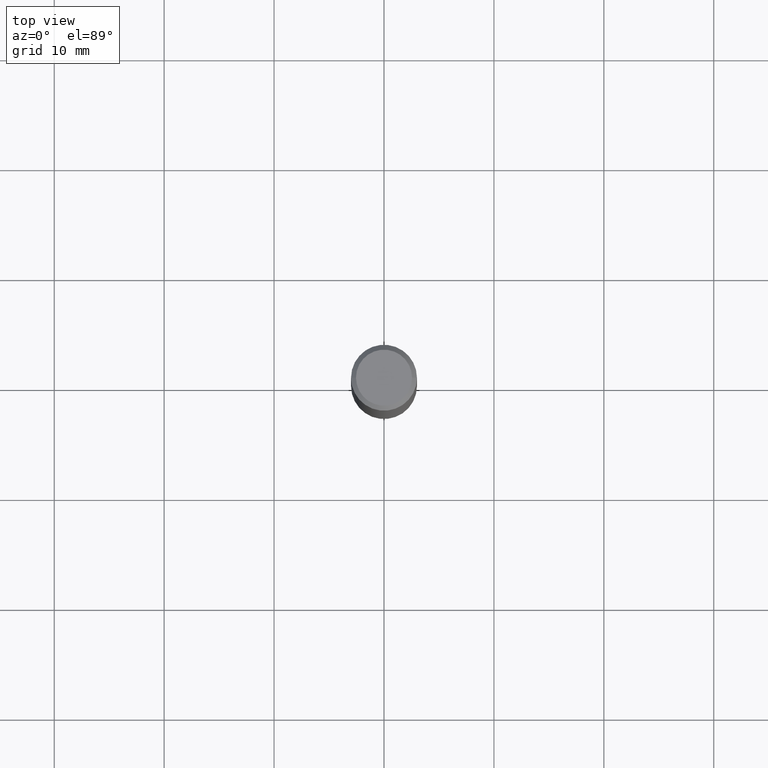
[diagram: clean part render]
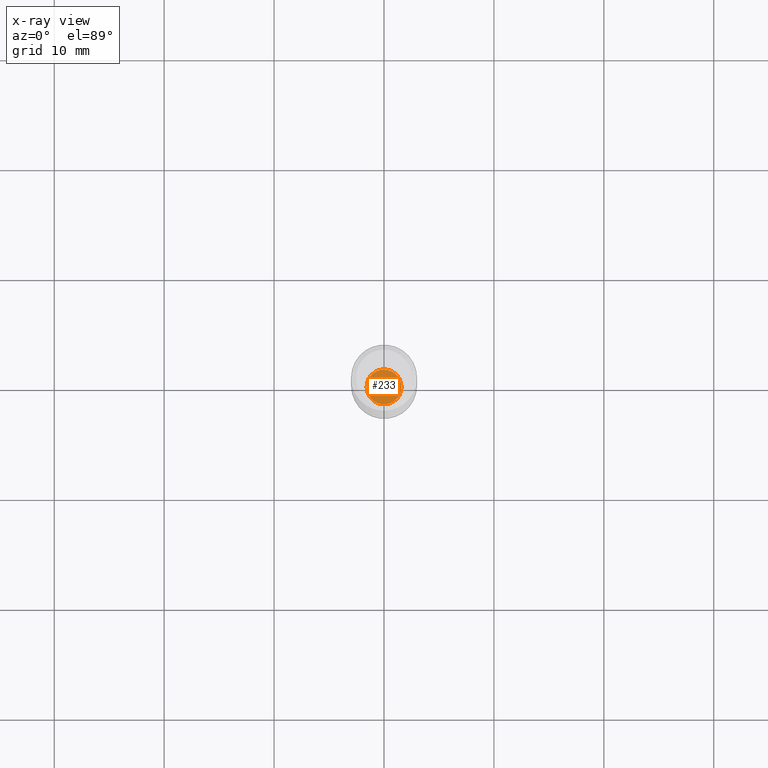
[diagram: x-ray — body ghosted, one internal face saturated and labeled with its STEP entity id]
A machine part, top view, then the same camera in x-ray: the body is ghosted and one INTERNAL B-rep face — a face not visible from any outside direction — is saturated and labeled: STEP entity #233.
In plain terms, the highlighted planar face has unit normal (-0, 0, 1).
Its self-contained STEP definition (entity closure, byte-faithful):
#15 = EDGE_CURVE ( 'NONE', #59, #288, #35, .T. ) ;
#27 = AXIS2_PLACEMENT_3D ( 'NONE', #286, #398, #57 ) ;
#35 = CIRCLE ( 'NONE', #212, 0.06250000000000000000 ) ;
#57 = DIRECTION ( 'NONE',  ( 1.000000000000000000, -6.982962677686265922E-15, 4.876176775795935793E-29 ) ) ;
#59 = VERTEX_POINT ( 'NONE', #269 ) ;
#64 = DIRECTION ( 'NONE',  ( 1.000000000000000000, -6.982962677686262766E-15, 0.000000000000000000 ) ) ;
#136 = FACE_OUTER_BOUND ( 'NONE', #227, .T. ) ;
#147 = DIRECTION ( 'NONE',  ( -2.445468806185136597E-29, 3.491481338843145583E-15, 1.000000000000000000 ) ) ;
#163 = CIRCLE ( 'NONE', #308, 0.06250000000000000000 ) ;
#164 = CARTESIAN_POINT ( 'NONE',  ( -0.06250000000000000000, -6.316260916314998432E-15, -1.936999999999999833 ) ) ;
#179 = ORIENTED_EDGE ( 'NONE', *, *, #420, .F. ) ;
#212 = AXIS2_PLACEMENT_3D ( 'NONE', #254, #490, #426 ) ;
#227 = EDGE_LOOP ( 'NONE', ( #406, #179 ) ) ;
#233 = ADVANCED_FACE ( 'NONE', ( #136 ), #326, .F. ) ;
#244 = CARTESIAN_POINT ( 'NONE',  ( 4.736873077580609355E-29, -6.762999353339172249E-15, -1.936999999999999833 ) ) ;
#254 = CARTESIAN_POINT ( 'NONE',  ( 4.736873077580609355E-29, -6.762999353339172249E-15, -1.936999999999999833 ) ) ;
#269 = CARTESIAN_POINT ( 'NONE',  ( 0.06250000000000000000, -7.199434520694563130E-15, -1.936999999999999833 ) ) ;
#286 = CARTESIAN_POINT ( 'NONE',  ( 4.736873077580609355E-29, -6.762999353339172249E-15, -1.936999999999999833 ) ) ;
#288 = VERTEX_POINT ( 'NONE', #164 ) ;
#308 = AXIS2_PLACEMENT_3D ( 'NONE', #244, #147, #64 ) ;
#326 = PLANE ( 'NONE',  #27 ) ;
#398 = DIRECTION ( 'NONE',  ( -2.438088387897960049E-29, 3.491481338843145188E-15, 1.000000000000000000 ) ) ;
#406 = ORIENTED_EDGE ( 'NONE', *, *, #15, .F. ) ;
#420 = EDGE_CURVE ( 'NONE', #288, #59, #163, .T. ) ;
#426 = DIRECTION ( 'NONE',  ( 1.000000000000000000, -6.982962677686262766E-15, 0.000000000000000000 ) ) ;
#490 = DIRECTION ( 'NONE',  ( -2.445468806185136597E-29, 3.491481338843145583E-15, 1.000000000000000000 ) ) ;